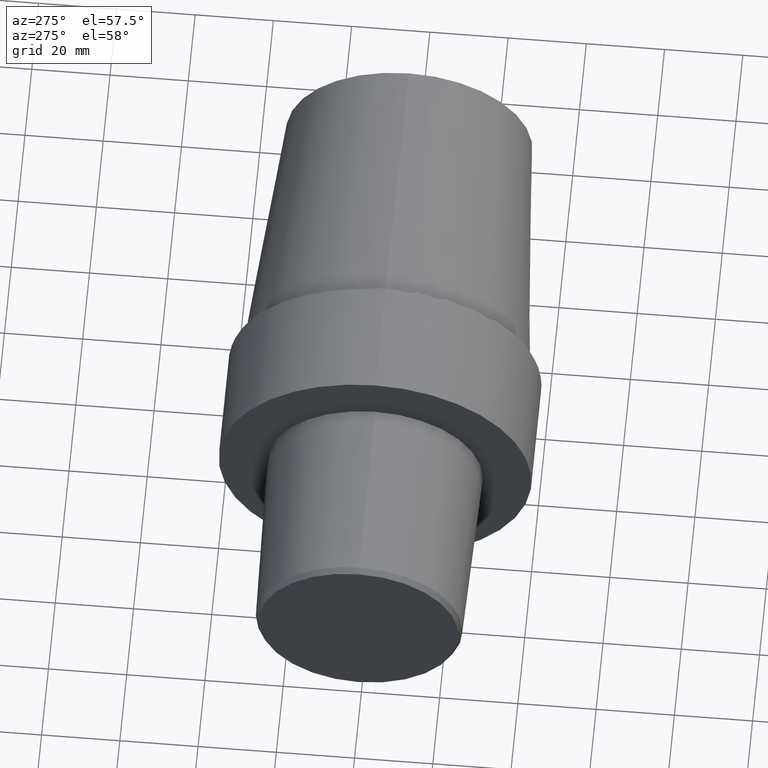
[diagram: clean part render]
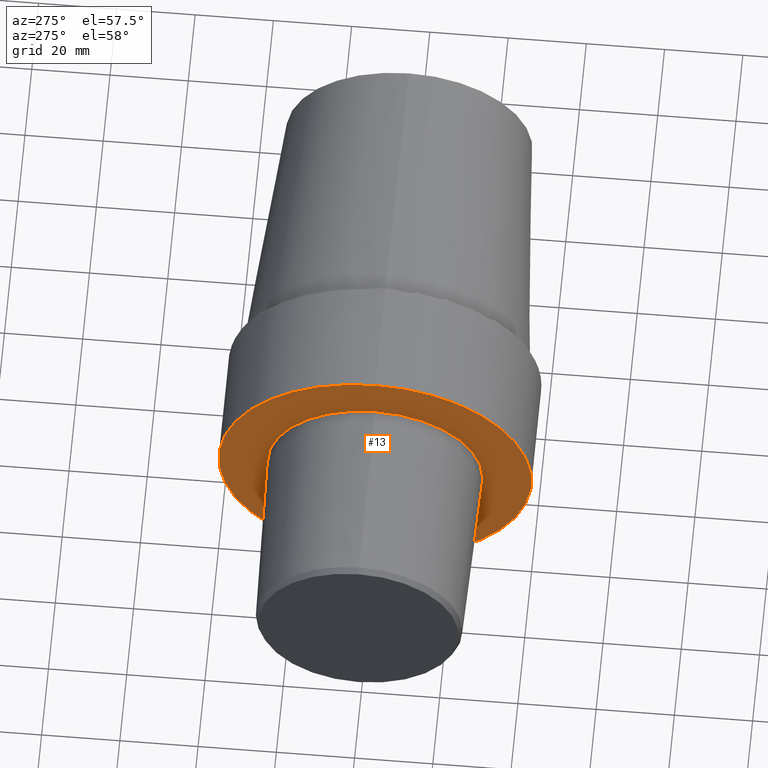
[diagram: same view with one face highlighted and labeled with its STEP entity id]
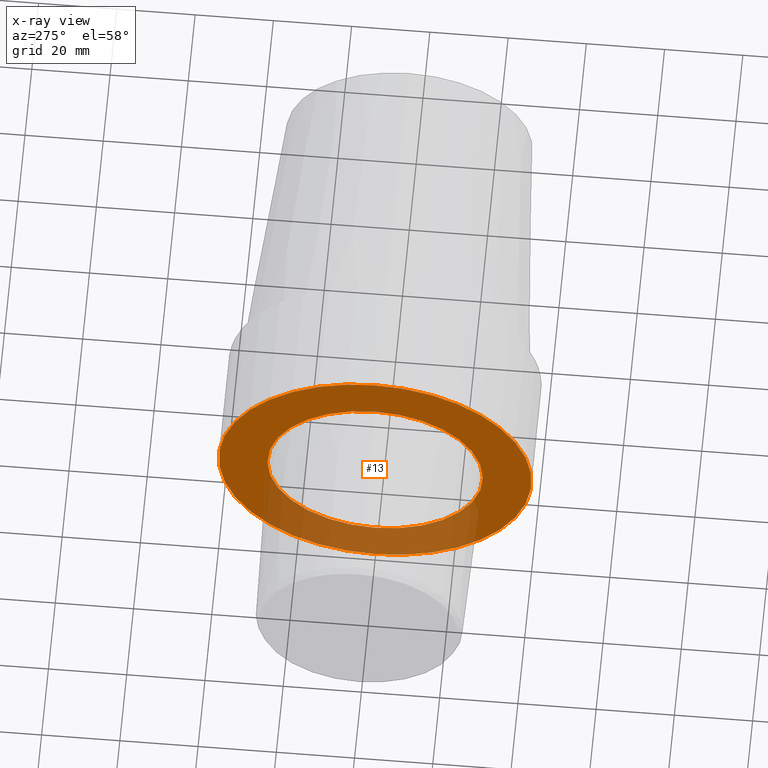
[diagram: x-ray of the same camera — body ghosted, the highlighted face saturated]
A machine part, auxiliary view. The second image highlights one B-rep face of the part: STEP entity #13.
The next image is the same camera in x-ray: the body ghosted, the highlighted face saturated — about 30% of this face is hidden behind the body in this view.
In plain terms, the highlighted planar face has unit normal (1, 0, 0).
Its self-contained STEP definition (entity closure, byte-faithful):
#13 = ADVANCED_FACE ( 'NONE', ( #169, #504 ), #415, .F. ) ;
#47 = CARTESIAN_POINT ( 'NONE',  ( 2.691416640612785863E-09, 0.000000000000000000, 27.52650806658465399 ) ) ;
#48 = DIRECTION ( 'NONE',  ( 1.000000000000000000, 0.000000000000000000, 0.000000000000000000 ) ) ;
#68 = CIRCLE ( 'NONE', #371, 39.99249996386929951 ) ;
#92 = CARTESIAN_POINT ( 'NONE',  ( 2.691416640612785863E-09, 3.371024999544667893E-15, -27.52650806658465399 ) ) ;
#119 = AXIS2_PLACEMENT_3D ( 'NONE', #292, #48, #209 ) ;
#121 = VERTEX_POINT ( 'NONE', #425 ) ;
#126 = EDGE_LOOP ( 'NONE', ( #300, #367 ) ) ;
#135 = EDGE_CURVE ( 'NONE', #321, #377, #454, .T. ) ;
#143 = DIRECTION ( 'NONE',  ( 0.000000000000000000, 0.000000000000000000, 1.000000000000000000 ) ) ;
#146 = DIRECTION ( 'NONE',  ( 0.000000000000000000, 0.000000000000000000, 1.000000000000000000 ) ) ;
#151 = ORIENTED_EDGE ( 'NONE', *, *, #352, .T. ) ;
#169 = FACE_BOUND ( 'NONE', #126, .T. ) ;
#170 = DIRECTION ( 'NONE',  ( 0.000000000000000000, 0.000000000000000000, 1.000000000000000000 ) ) ;
#176 = DIRECTION ( 'NONE',  ( -1.000000000000000000, 0.000000000000000000, 0.000000000000000000 ) ) ;
#187 = CARTESIAN_POINT ( 'NONE',  ( 2.691416640612785863E-09, 0.000000000000000000, 0.000000000000000000 ) ) ;
#191 = AXIS2_PLACEMENT_3D ( 'NONE', #187, #390, #146 ) ;
#192 = VERTEX_POINT ( 'NONE', #539 ) ;
#209 = DIRECTION ( 'NONE',  ( 0.000000000000000000, 1.000000000000000000, 0.000000000000000000 ) ) ;
#217 = DIRECTION ( 'NONE',  ( -1.000000000000000000, 0.000000000000000000, 0.000000000000000000 ) ) ;
#257 = CARTESIAN_POINT ( 'NONE',  ( 2.691416640612785863E-09, 0.000000000000000000, 0.000000000000000000 ) ) ;
#261 = CARTESIAN_POINT ( 'NONE',  ( 2.691416640612785863E-09, 0.000000000000000000, 0.000000000000000000 ) ) ;
#276 = AXIS2_PLACEMENT_3D ( 'NONE', #461, #176, #418 ) ;
#292 = CARTESIAN_POINT ( 'NONE',  ( 2.691419645645579073E-09, 39.99249996386929951, 0.000000000000000000 ) ) ;
#298 = ORIENTED_EDGE ( 'NONE', *, *, #316, .T. ) ;
#300 = ORIENTED_EDGE ( 'NONE', *, *, #530, .F. ) ;
#316 = EDGE_CURVE ( 'NONE', #192, #121, #68, .T. ) ;
#321 = VERTEX_POINT ( 'NONE', #92 ) ;
#352 = EDGE_CURVE ( 'NONE', #121, #192, #518, .T. ) ;
#359 = EDGE_LOOP ( 'NONE', ( #298, #151 ) ) ;
#367 = ORIENTED_EDGE ( 'NONE', *, *, #135, .F. ) ;
#371 = AXIS2_PLACEMENT_3D ( 'NONE', #257, #217, #170 ) ;
#377 = VERTEX_POINT ( 'NONE', #47 ) ;
#390 = DIRECTION ( 'NONE',  ( -1.000000000000000000, 0.000000000000000000, 0.000000000000000000 ) ) ;
#415 = PLANE ( 'NONE',  #119 ) ;
#418 = DIRECTION ( 'NONE',  ( 0.000000000000000000, 0.000000000000000000, 1.000000000000000000 ) ) ;
#425 = CARTESIAN_POINT ( 'NONE',  ( 2.691416640612785863E-09, 4.897668707065322260E-15, -39.99249996386929951 ) ) ;
#432 = AXIS2_PLACEMENT_3D ( 'NONE', #261, #520, #143 ) ;
#434 = CIRCLE ( 'NONE', #191, 27.52650806658465399 ) ;
#454 = CIRCLE ( 'NONE', #432, 27.52650806658465399 ) ;
#461 = CARTESIAN_POINT ( 'NONE',  ( 2.691416640612785863E-09, 0.000000000000000000, 0.000000000000000000 ) ) ;
#504 = FACE_OUTER_BOUND ( 'NONE', #359, .T. ) ;
#518 = CIRCLE ( 'NONE', #276, 39.99249996386929951 ) ;
#520 = DIRECTION ( 'NONE',  ( -1.000000000000000000, 0.000000000000000000, 0.000000000000000000 ) ) ;
#530 = EDGE_CURVE ( 'NONE', #377, #321, #434, .T. ) ;
#539 = CARTESIAN_POINT ( 'NONE',  ( 2.691416640612785863E-09, 0.000000000000000000, 39.99249996386929951 ) ) ;